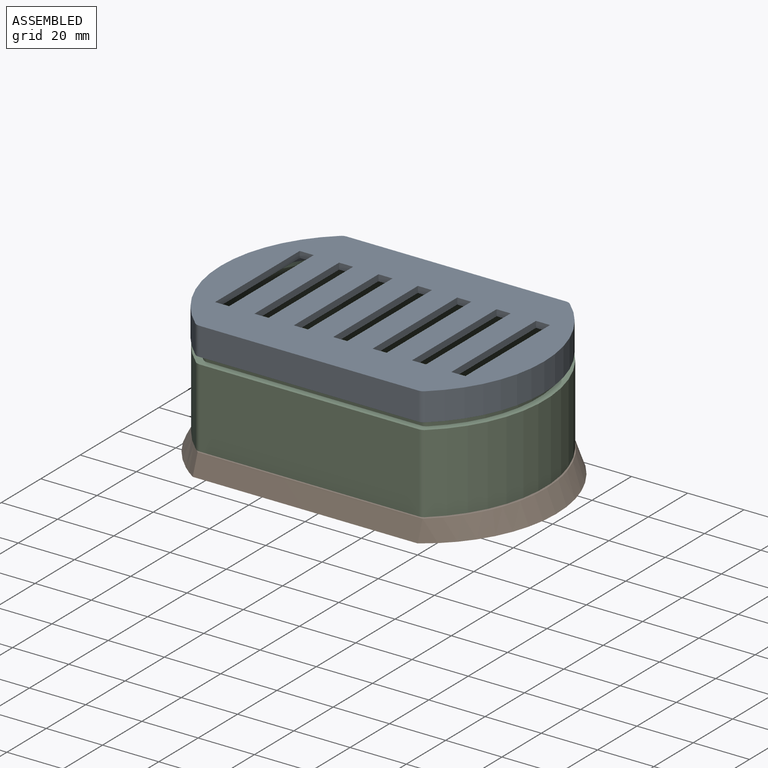
[diagram: assembled view]
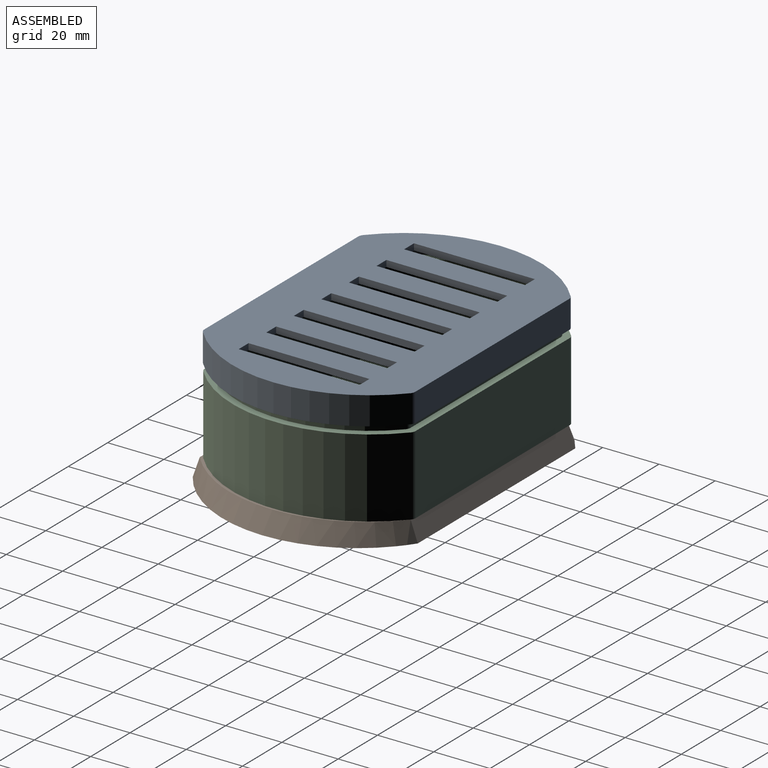
[diagram: assembled view, second angle]
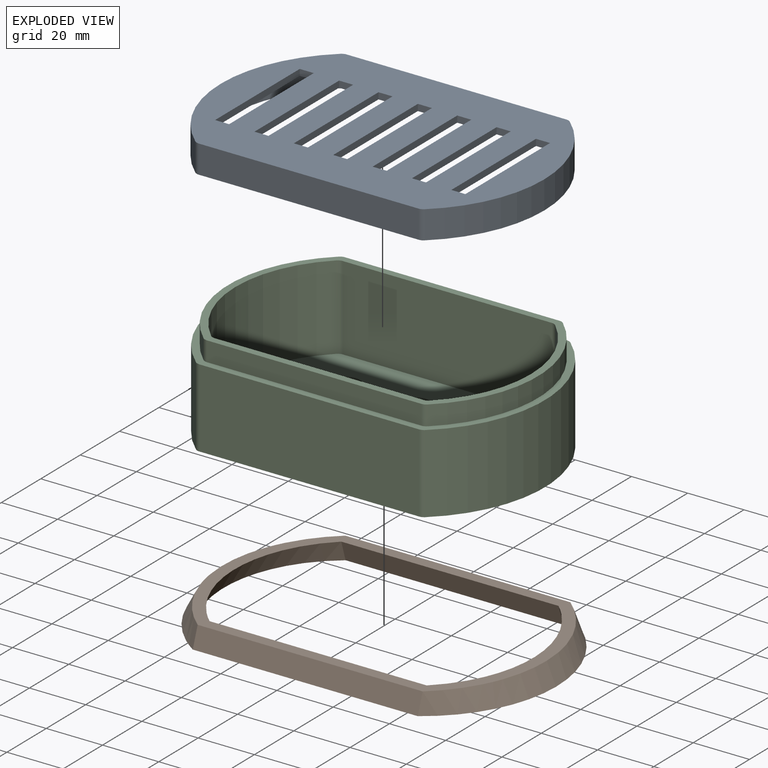
[diagram: exploded view]
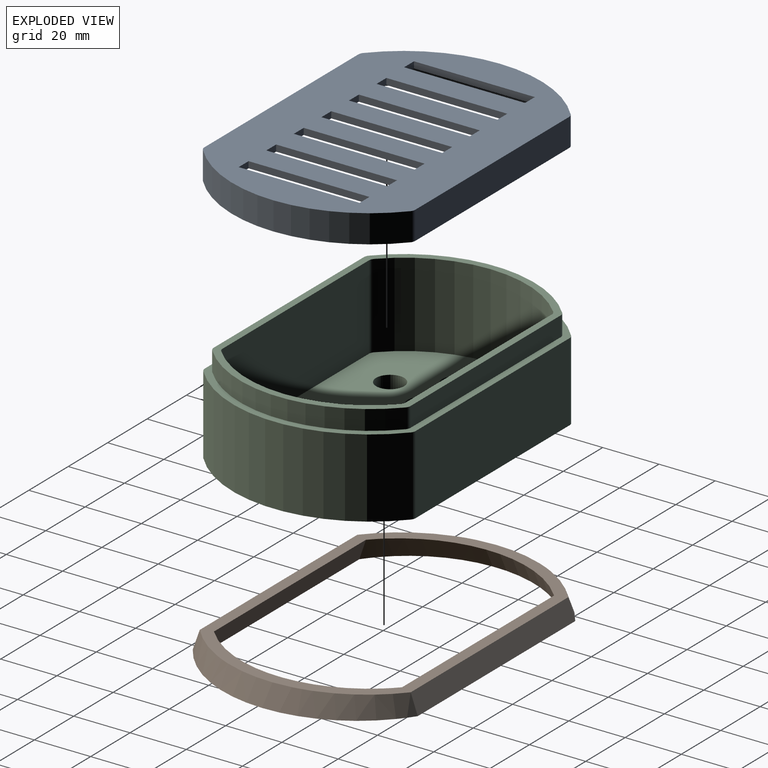
[diagram: exploded view, second angle]
ASSEMBLY  parts=3 mates=2
PART A: 47 faces, bbox 115x75x10 mm
  f0: plane 115x75mm, normal (0,0,1), area 6319.1mm2, adj f3,f4,f5,f6,f11,f12,f13,f14
  f1: plane 110.4x70.4mm, normal (0,0,-1), area 5574.9mm2, adj f7,f8,f9,f10,f11,f12,f13,f14
  f2: plane 115x75mm, normal (0,0,-1), area 744.2mm2, adj f3,f4,f5,f6,f7,f8,f9,f10
  f3: plane 78.12x10mm, normal (0,1,0), area 781.2mm2, adj f0,f2,f43,f46
  f4: cylinder r=48.93mm len=73.75mm, axis (0,0,-1), area 835.3mm2, adj f0,f2,f43,f44
  f5: plane 78.12x10mm, normal (0,-1,0), area 781.2mm2, adj f0,f2,f44,f45
  f6: cylinder r=48.93mm len=73.75mm, axis (0,0,-1), area 835.3mm2, adj f0,f2,f45,f46
  f7: plane 76.38x7.7mm, normal (0,-1,0), area 588.1mm2, adj f1,f2,f40,f42
  f8: cylinder r=46.63mm len=69.08mm, axis (0,0,-1), area 599mm2, adj f1,f2,f41,f42
  f9: plane 76.38x7.7mm, normal (0,1,0), area 588.1mm2, adj f1,f2,f39,f41
  f10: cylinder r=46.63mm len=69.08mm, axis (0,0,-1), area 599mm2, adj f1,f2,f39,f40
  f11: plane 42.99x2.3mm, normal (-1,0,0), area 98.9mm2, adj f0,f1,f12,f14
  f12: plane 5x2.3mm, normal (0,-1,0), area 11.5mm2, adj f0,f1,f11,f13
  f13: plane 42.99x2.3mm, normal (1,0,0), area 98.9mm2, adj f0,f1,f12,f14
  f14: plane 5x2.3mm, normal (0,1,0), area 11.5mm2, adj f0,f1,f11,f13
  f15: plane 42.99x2.3mm, normal (-1,0,0), area 98.9mm2, adj f0,f1,f16,f18
  f16: plane 5x2.3mm, normal (0,-1,0), area 11.5mm2, adj f0,f1,f15,f17
  f17: plane 42.99x2.3mm, normal (1,0,0), area 98.9mm2, adj f0,f1,f16,f18
  f18: plane 5x2.3mm, normal (0,1,0), area 11.5mm2, adj f0,f1,f15,f17
  f19: plane 42.99x2.3mm, normal (-1,0,0), area 98.9mm2, adj f0,f1,f20,f22
  f20: plane 5x2.3mm, normal (0,-1,0), area 11.5mm2, adj f0,f1,f19,f21
  f21: plane 42.99x2.3mm, normal (1,0,0), area 98.9mm2, adj f0,f1,f20,f22
  f22: plane 5x2.3mm, normal (0,1,0), area 11.5mm2, adj f0,f1,f19,f21
  f23: plane 42.99x2.3mm, normal (-1,0,0), area 98.9mm2, adj f0,f1,f24,f26
  f24: plane 5x2.3mm, normal (0,-1,0), area 11.5mm2, adj f0,f1,f23,f25
  f25: plane 42.99x2.3mm, normal (1,0,0), area 98.9mm2, adj f0,f1,f24,f26
  f26: plane 5x2.3mm, normal (0,1,0), area 11.5mm2, adj f0,f1,f23,f25
  f27: plane 42.99x2.3mm, normal (-1,0,0), area 98.9mm2, adj f0,f1,f28,f30
  f28: plane 5x2.3mm, normal (0,-1,0), area 11.5mm2, adj f0,f1,f27,f29
  f29: plane 42.99x2.3mm, normal (1,0,0), area 98.9mm2, adj f0,f1,f28,f30
  f30: plane 5x2.3mm, normal (0,1,0), area 11.5mm2, adj f0,f1,f27,f29
  f31: plane 42.99x2.3mm, normal (-1,0,0), area 98.9mm2, adj f0,f1,f32,f34
  f32: plane 5x2.3mm, normal (0,-1,0), area 11.5mm2, adj f0,f1,f31,f33
  f33: plane 42.99x2.3mm, normal (1,0,0), area 98.9mm2, adj f0,f1,f32,f34
  f34: plane 5x2.3mm, normal (0,1,0), area 11.5mm2, adj f0,f1,f31,f33
  f35: plane 42.99x2.3mm, normal (-1,0,0), area 98.9mm2, adj f0,f1,f36,f38
  f36: plane 5x2.3mm, normal (0,-1,0), area 11.5mm2, adj f0,f1,f35,f37
  f37: plane 42.99x2.3mm, normal (1,0,0), area 98.9mm2, adj f0,f1,f36,f38
  f38: plane 5x2.3mm, normal (0,1,0), area 11.5mm2, adj f0,f1,f35,f37
  f39: cylinder r=2.54mm len=7.7mm, axis (0,0,-1), area 14.4mm2, adj f1,f2,f9,f10
  f40: cylinder r=2.54mm len=7.7mm, axis (0,0,-1), area 14.4mm2, adj f1,f2,f7,f10
  f41: cylinder r=2.54mm len=7.7mm, axis (0,0,-1), area 14.4mm2, adj f1,f2,f8,f9
  f42: cylinder r=2.54mm len=7.7mm, axis (0,0,-1), area 14.4mm2, adj f1,f2,f7,f8
  f43: cylinder r=2.54mm len=10mm, axis (0,0,-1), area 18.2mm2, adj f0,f2,f3,f4
  f44: cylinder r=2.54mm len=10mm, axis (0,0,-1), area 18.2mm2, adj f0,f2,f4,f5
  f45: cylinder r=2.54mm len=10mm, axis (0,0,-1), area 18.2mm2, adj f0,f2,f5,f6
  f46: cylinder r=2.54mm len=10mm, axis (0,0,-1), area 18.2mm2, adj f0,f2,f3,f6
PART B: 10 faces, bbox 130.4x87.6x16.5 mm
  f0: plane 122.78x80mm, normal (0,0,-1), area 1388.8mm2, adj f2,f3,f4,f5,f6,f7,f8,f9
  f1: plane 115x75mm, normal (0,0,1), area 1311.2mm2, adj f2,f3,f4,f5,f6,f7,f8,f9
  f2: plane 80x7mm, normal (0,-0.94,0.34), area 594.6mm2, adj f0,f1,f3,f5
  f3: bspline ~80x21.39mm, area 695.3mm2, adj f0,f1,f2,f4
  f4: plane 80x7mm, normal (0,0.94,0.34), area 594.6mm2, adj f0,f1,f3,f5
  f5: bspline ~80x21.39mm, area 695.3mm2, adj f0,f1,f2,f4
  f6: plane 77.72x7.03mm, normal (0,0.94,-0.34), area 575.8mm2, adj f0,f1,f7,f9
  f7: offset ~87.62x29.01mm, area 613.8mm2, adj f0,f1,f6,f8
  f8: plane 77.72x7.03mm, normal (0,-0.94,-0.34), area 575.8mm2, adj f0,f1,f7,f9
  f9: offset ~87.62x29.01mm, area 613.8mm2, adj f0,f1,f6,f8
PART C: 39 faces, bbox 115x75x35 mm
  f0: plane 105x65mm, normal (0,0,1), area 5385.2mm2, adj f3,f4,f5,f6,f20,f21,f22,f23
  f1: plane 115x75mm, normal (0,0,-1), area 6959.7mm2, adj f12,f13,f14,f15,f24,f25,f26,f27
  f2: plane 110x70mm, normal (0,0,1), area 767.2mm2, adj f3,f4,f5,f6,f7,f8,f9,f10
  f3: plane 74.25x30mm, normal (0,-1,0), area 2227.6mm2, adj f0,f2,f21,f23
  f4: cylinder r=43.93mm len=63.6mm, axis (0,0,-1), area 2133.3mm2, adj f0,f2,f22,f23
  f5: plane 74.25x30mm, normal (0,1,0), area 2227.6mm2, adj f0,f2,f20,f22
  f6: cylinder r=43.93mm len=63.6mm, axis (0,0,-1), area 2133.3mm2, adj f0,f2,f20,f21
  f7: cylinder r=46.43mm len=68.68mm, axis (0,0,-1), area 541.1mm2, adj f2,f11,f17,f18
  f8: plane 76.22x7mm, normal (0,-1,0), area 533.5mm2, adj f2,f11,f18,f19
  f9: plane 76.22x7mm, normal (0,1,0), area 533.5mm2, adj f2,f11,f16,f17
  f10: cylinder r=46.43mm len=68.68mm, axis (0,0,-1), area 541.1mm2, adj f2,f11,f16,f19
  f11: plane 115x75mm, normal (0,0,1), area 807.3mm2, adj f7,f8,f9,f10,f12,f13,f14,f15
  f12: cylinder r=48.93mm len=73.75mm, axis (0,0,-1), area 2338.8mm2, adj f1,f11,f26,f27
  f13: plane 78.12x28mm, normal (0,-1,0), area 2187.5mm2, adj f1,f11,f25,f26
  f14: cylinder r=48.93mm len=73.75mm, axis (0,0,-1), area 2338.8mm2, adj f1,f11,f24,f25
  f15: plane 78.12x28mm, normal (0,1,0), area 2187.5mm2, adj f1,f11,f24,f27
  f16: cylinder r=2.54mm len=7mm, axis (0,0,-1), area 13.1mm2, adj f2,f9,f10,f11
  f17: cylinder r=2.54mm len=7mm, axis (0,0,-1), area 13.1mm2, adj f2,f7,f9,f11
  f18: cylinder r=2.54mm len=7mm, axis (0,0,-1), area 13.1mm2, adj f2,f7,f8,f11
  f19: cylinder r=2.54mm len=7mm, axis (0,0,-1), area 13.1mm2, adj f2,f8,f10,f11
  f20: cylinder r=2.54mm len=30mm, axis (0,0,-1), area 58mm2, adj f0,f2,f5,f6
  f21: cylinder r=2.54mm len=30mm, axis (0,0,-1), area 58mm2, adj f0,f2,f3,f6
  f22: cylinder r=2.54mm len=30mm, axis (0,0,-1), area 58mm2, adj f0,f2,f4,f5
  f23: cylinder r=2.54mm len=30mm, axis (0,0,-1), area 58mm2, adj f0,f2,f3,f4
  f24: cylinder r=2.54mm len=28mm, axis (0,0,-1), area 51mm2, adj f1,f11,f14,f15
  f25: cylinder r=2.54mm len=28mm, axis (0,0,-1), area 51mm2, adj f1,f11,f13,f14
  f26: cylinder r=2.54mm len=28mm, axis (0,0,-1), area 51mm2, adj f1,f11,f12,f13
  f27: cylinder r=2.54mm len=28mm, axis (0,0,-1), area 51mm2, adj f1,f11,f12,f15
  f28: cylinder r=5mm len=10mm, axis (0,0,1), area 157.1mm2, adj f0,f1
  f29: cylinder r=5mm len=10mm, axis (0,0,1), area 157.1mm2, adj f0,f1
  f30: cylinder r=5mm len=10mm, axis (0,0,1), area 157.1mm2, adj f0,f1
  f31: cylinder r=5mm len=10mm, axis (0,0,1), area 157.1mm2, adj f0,f1
  f32: cylinder r=5mm len=10mm, axis (0,0,1), area 157.1mm2, adj f0,f1
  f33: cylinder r=5mm len=10mm, axis (0,0,1), area 157.1mm2, adj f0,f1
  f34: cylinder r=5mm len=10mm, axis (0,0,1), area 157.1mm2, adj f0,f1
  f35: cylinder r=5mm len=10mm, axis (0,0,1), area 157.1mm2, adj f0,f1
  f36: cylinder r=5mm len=10mm, axis (0,0,1), area 157.1mm2, adj f0,f1
  f37: cylinder r=5mm len=10mm, axis (0,0,1), area 157.1mm2, adj f0,f1
  f38: cylinder r=5mm len=10mm, axis (0,0,1), area 157.1mm2, adj f0,f1
PLACE A t=(-14.19,5.35,29.45)mm
PLACE B t=(-13.38,4.93,-1.06)mm
PLACE C t=(-14.12,5.55,-1.06)mm fixed
MATE slider A.f2 <-> C.f2  axis (0,0,-1) through (23.99,40.55,29.45)mm
MATE fastened C.f1 <-> B.f1  axis (0,0,-1) through (26.62,42.43,-1.06)mm
